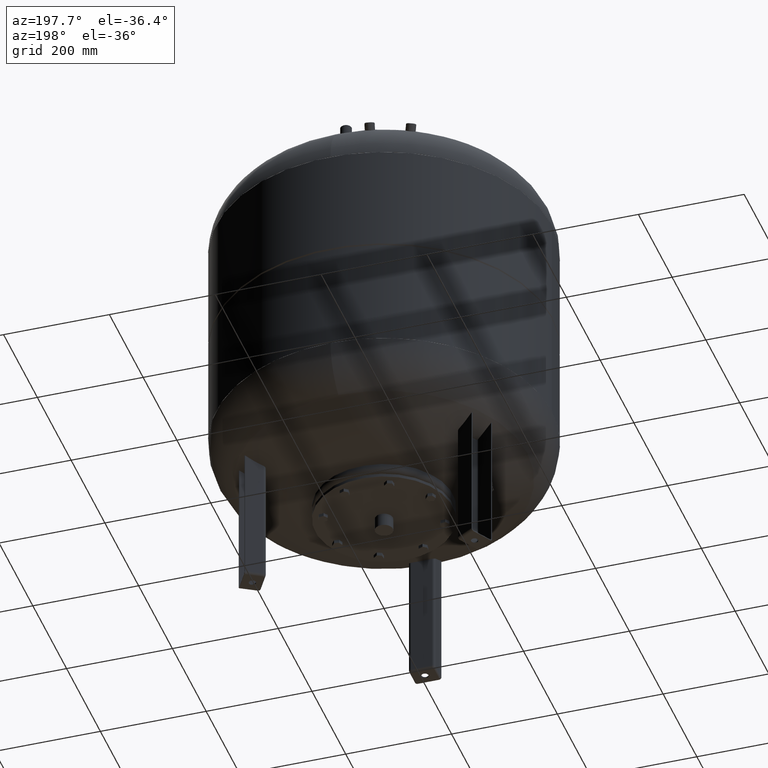
[diagram: clean part render]
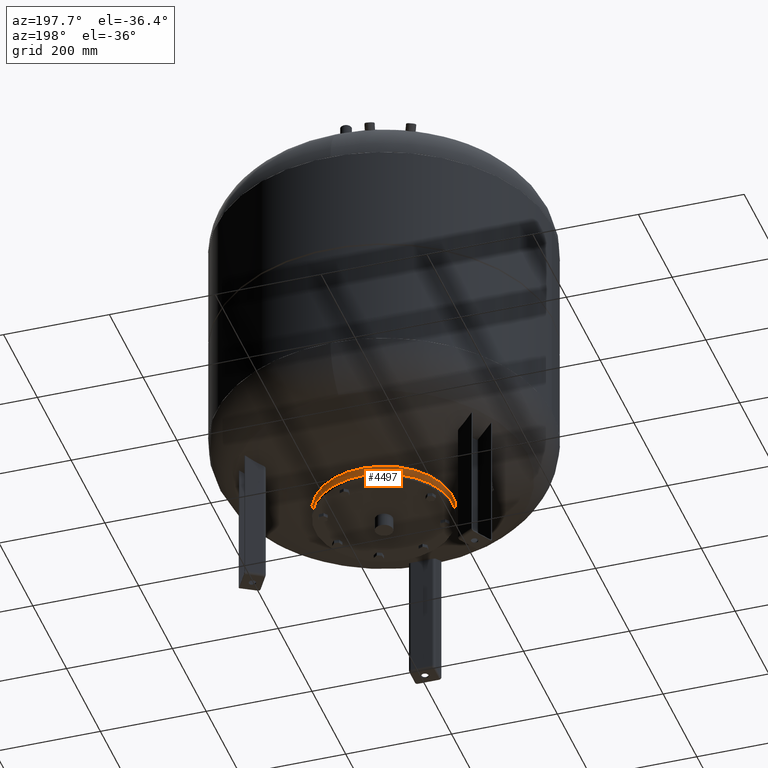
[diagram: same view with one face highlighted and labeled with its STEP entity id]
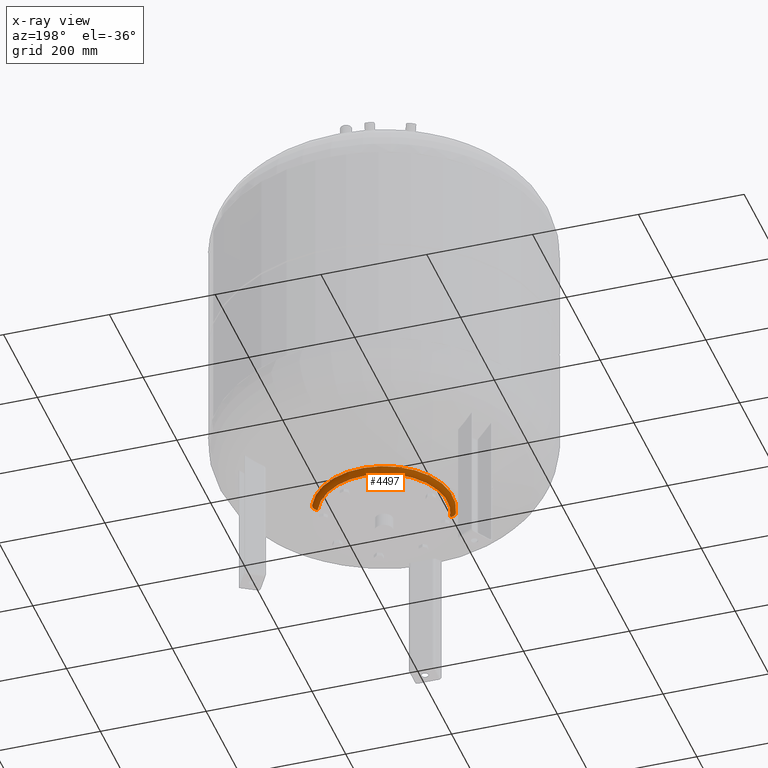
[diagram: x-ray of the same camera — body ghosted, the highlighted face saturated]
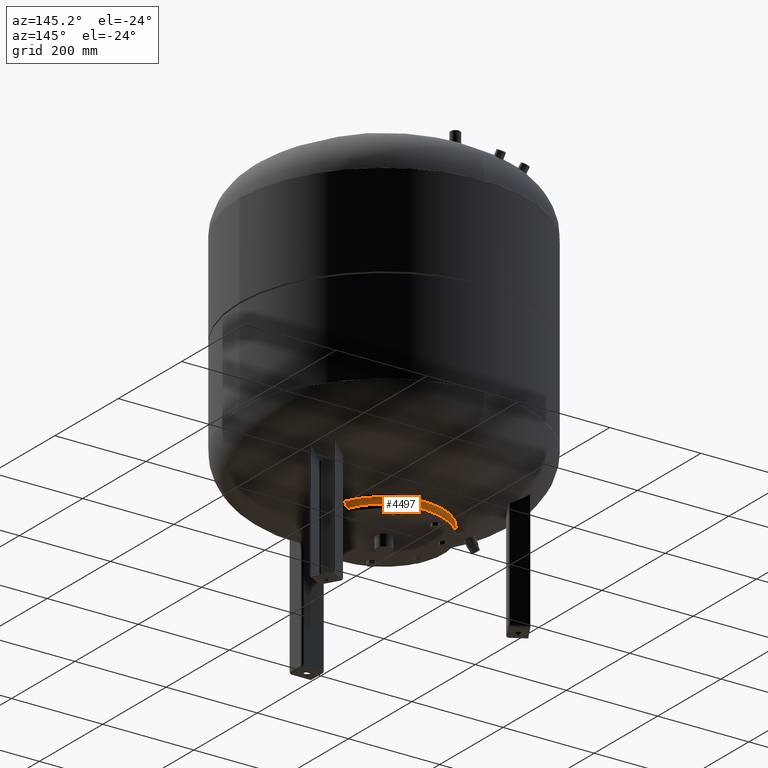
[diagram: same view with one face highlighted and labeled with its STEP entity id]
A machine part, auxiliary view. The second image highlights one B-rep face of the part: STEP entity #4497.
The next image is the same camera in x-ray: the body ghosted, the highlighted face saturated — about 0% of this face is hidden behind the body in this view.
A second angle (auxiliary view) of the same face is appended — the face is thin or edge-on in the first view.
In plain terms, the highlighted toroidal blend (fillet) surface has major radius 120 mm and minor (blend) radius 10 mm.
Its self-contained STEP definition (entity closure, byte-faithful):
#4454=CARTESIAN_POINT('',(2.237813E-015,-5.402560E-015,202.750000000000000));
#4455=DIRECTION('',(9.706102E-018,1.365752E-016,-1.0));
#4456=DIRECTION('',(0.923879532511287,0.382683432365090,6.123234E-017));
#4457=AXIS2_PLACEMENT_3D('',#4454,#4455,#4456);
#4458=TOROIDAL_SURFACE('',#4457,119.999999999999990,10.0);
#4459=CARTESIAN_POINT('',(110.865543901354400,45.922011883810761,192.750000000000000));
#4460=VERTEX_POINT('',#4459);
#4461=CARTESIAN_POINT('',(120.104339226467250,49.748846207461654,202.750000000000000));
#4462=VERTEX_POINT('',#4461);
#4463=CARTESIAN_POINT('',(110.865543901354400,45.922011883810761,202.750000000000000));
#4464=DIRECTION('',(0.382683432365090,-0.923879532511287,-1.224647E-016));
#4465=DIRECTION('',(0.923879532511287,0.382683432365090,0.0));
#4466=AXIS2_PLACEMENT_3D('',#4463,#4464,#4465);
#4467=CIRCLE('',#4466,10.0);
#4468=EDGE_CURVE('',#4460,#4462,#4467,.T.);
#4469=ORIENTED_EDGE('',*,*,#4468,.F.);
#4470=CARTESIAN_POINT('',(-110.865543901354400,-45.922011883810761,192.750000000000000));
#4471=VERTEX_POINT('',#4470);
#4472=CARTESIAN_POINT('',(1.387305E-015,-4.429304E-015,192.750000000000000));
#4473=DIRECTION('',(5.860527E-017,2.427510E-017,-1.0));
#4474=DIRECTION('',(0.923879532511287,0.382683432365090,6.343388E-017));
#4475=AXIS2_PLACEMENT_3D('',#4472,#4473,#4474);
#4476=CIRCLE('',#4475,119.999999999999990);
#4477=EDGE_CURVE('',#4471,#4460,#4476,.T.);
#4478=ORIENTED_EDGE('',*,*,#4477,.F.);
#4479=CARTESIAN_POINT('',(-120.104339226467250,-49.748846207461654,202.750000000000000));
#4480=VERTEX_POINT('',#4479);
#4481=CARTESIAN_POINT('',(-110.865543901354400,-45.922011883810761,202.750000000000000));
#4482=DIRECTION('',(-0.382683432365090,0.923879532511287,1.224647E-016));
#4483=DIRECTION('',(-0.923879532511287,-0.382683432365090,0.0));
#4484=AXIS2_PLACEMENT_3D('',#4481,#4482,#4483);
#4485=CIRCLE('',#4484,10.0);
#4486=EDGE_CURVE('',#4471,#4480,#4485,.T.);
#4487=ORIENTED_EDGE('',*,*,#4486,.T.);
#4488=CARTESIAN_POINT('',(1.290244E-015,-5.795056E-015,202.750000000000000));
#4489=DIRECTION('',(5.860527E-017,2.427510E-017,-1.0));
#4490=DIRECTION('',(0.923879532511287,0.382683432365090,6.343388E-017));
#4491=AXIS2_PLACEMENT_3D('',#4488,#4489,#4490);
#4492=CIRCLE('',#4491,129.999999999999970);
#4493=EDGE_CURVE('',#4480,#4462,#4492,.T.);
#4494=ORIENTED_EDGE('',*,*,#4493,.T.);
#4495=EDGE_LOOP('',(#4469,#4478,#4487,#4494));
#4496=FACE_OUTER_BOUND('',#4495,.T.);
#4497=ADVANCED_FACE('',(#4496),#4458,.T.);